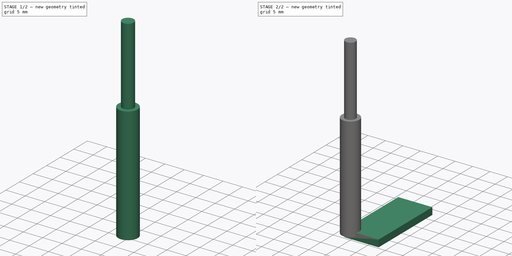
[diagram: build sequence overview — one tinted view per stage of 2, left to right]
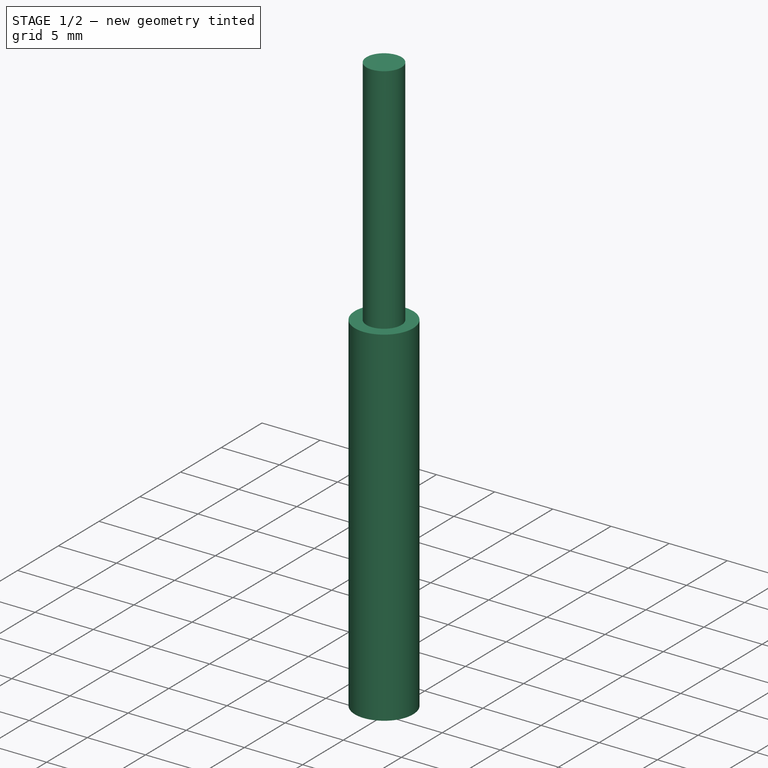
[diagram: stage 1 of 2 — iso view after this stage's code; geometry added in this stage tinted green]
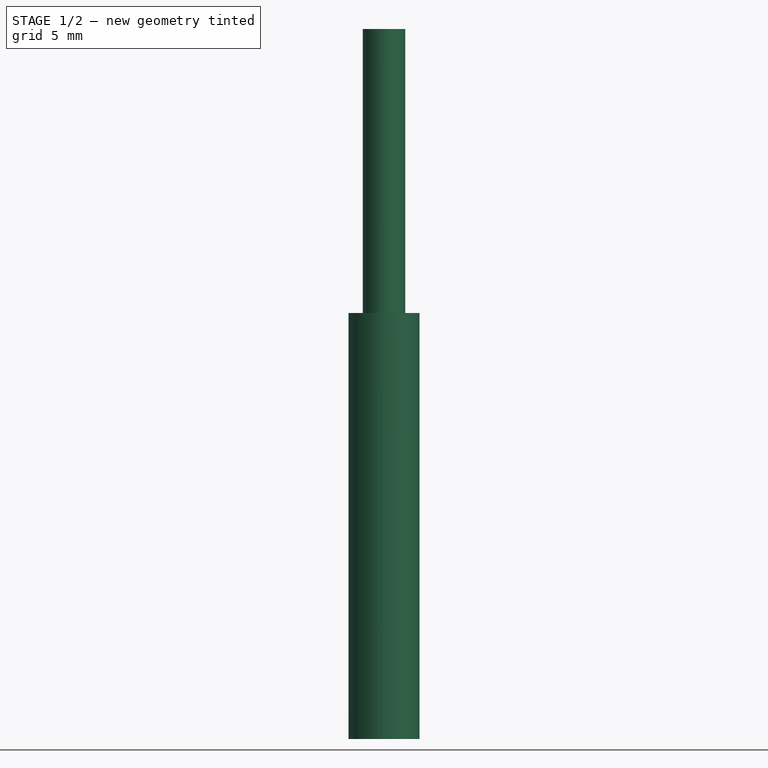
[diagram: stage 1 of 2 — front view after this stage's code; geometry added in this stage tinted green]
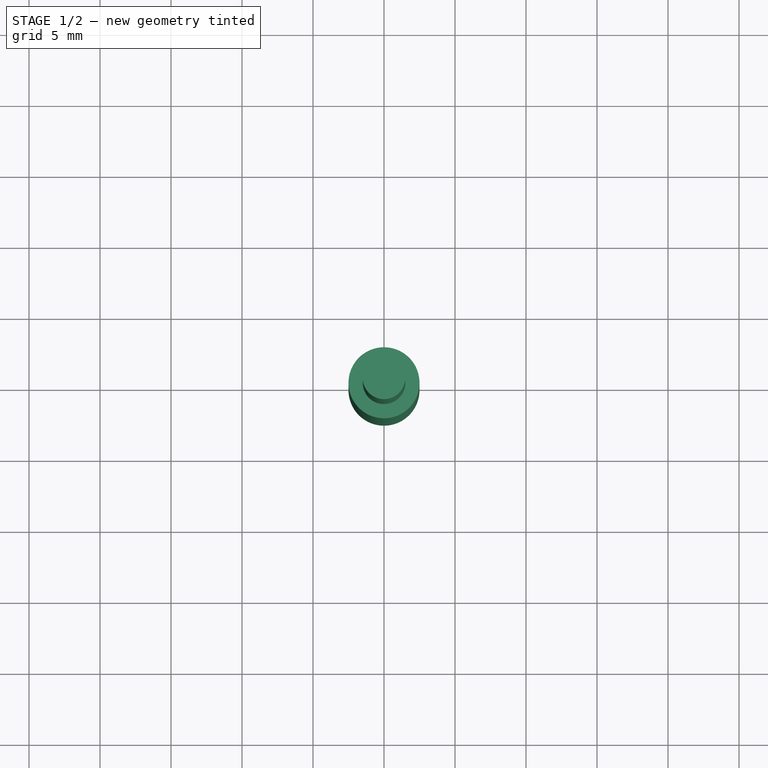
[diagram: stage 1 of 2 — top view after this stage's code; geometry added in this stage tinted green]
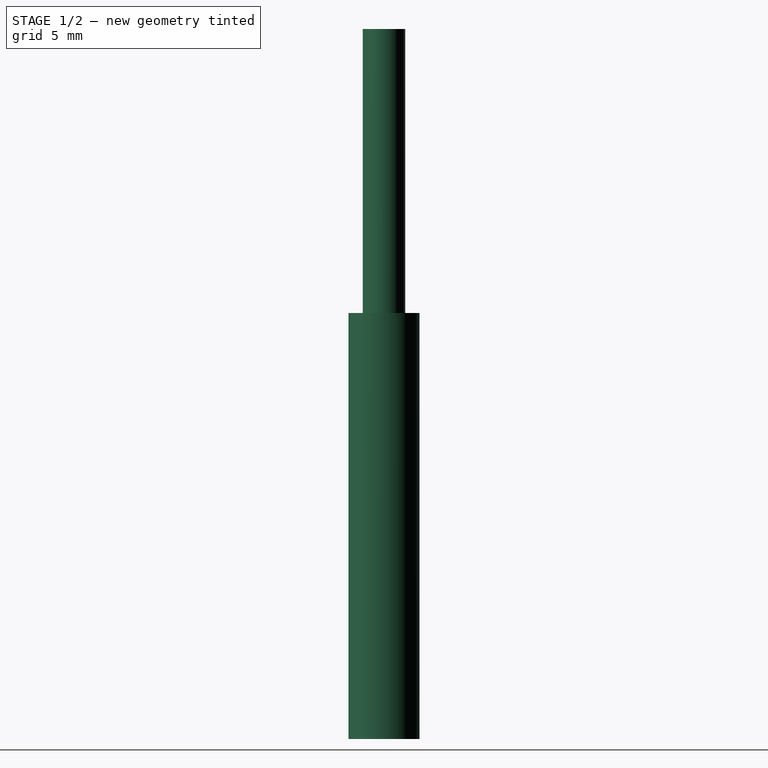
[diagram: stage 1 of 2 — right view after this stage's code; geometry added in this stage tinted green]
FCSTD DOCUMENT  (FreeCAD 0.21R33771 (Git))
Label: TmouldStencil
License: All rights reserved
LicenseURL: http://en.wikipedia.org/wiki/All_rights_reserved
objects: App::DocumentObjectGroup×3, Path::FeaturePython×3, Sketcher::SketchObject×2, Part::FeaturePython×2, App::FeaturePython×1, Part::Part2DObjectPython×1
note: 5 computed .brp shape members not serialized (recipe doc carries the construction recipe); baked Part::Feature solids carry a one-line shape summary decoded from their .brp

FEATURE [Sketcher::SketchObject] Sketch  label="20x50"
  FullyConstrained = true
  MapMode = 5
  Support = -> [XY_Plane]
  sketch-geometry (4):
    g0: LineSegment StartX=0 StartY=0 StartZ=0 EndX=50 EndY=0 EndZ=0
    g1: LineSegment StartX=50 StartY=0 StartZ=0 EndX=50 EndY=20 EndZ=0
    g2: LineSegment StartX=50 StartY=20 StartZ=0 EndX=0 EndY=20 EndZ=0
    g3: LineSegment StartX=0 StartY=20 StartZ=0 EndX=0 EndY=0 EndZ=0
  constraints (11):
    c: Coincident(g0,g1)
    c: Coincident(g1,g2)
    c: Coincident(g2,g3)
    c: Coincident(g3,g0)
    c: Horizontal(g0)
    c: Horizontal(g2)
    c: Vertical(g1)
    c: Vertical(g3)
    c: Coincident(g0,g-1)
    c: DistanceX(g2,g2) = 50
    c: DistanceY(g1,g1) = 20
FEATURE [Sketcher::SketchObject] Sketch001  label="LASER-X-Extent390"
  FullyConstrained = false
  MapMode = 2
  Support = -> [Sketch]
  sketch-geometry (60):
    g0: LineSegment StartX=0 StartY=0 StartZ=0 EndX=2.78457 EndY=0 EndZ=0
    g1: LineSegment StartX=2.78457 StartY=0 StartZ=0 EndX=2.78457 EndY=1 EndZ=0
    g2: LineSegment StartX=2.78457 StartY=1 StartZ=0 EndX=2.78457 EndY=2 EndZ=0
    g3: LineSegment StartX=2.78457 StartY=2 StartZ=0 EndX=2.78457 EndY=3 EndZ=0
    g4: LineSegment StartX=2.78457 StartY=3 StartZ=0 EndX=2.78457 EndY=4 EndZ=0
    g5: LineSegment StartX=2.78457 StartY=4 StartZ=0 EndX=2.78457 EndY=5 EndZ=0
    g6: LineSegment StartX=2.78457 StartY=5 StartZ=0 EndX=2.78457 EndY=6 EndZ=0
    g7: LineSegment StartX=2.78457 StartY=6 StartZ=0 EndX=2.78457 EndY=7 EndZ=0
    g8: LineSegment StartX=2.78457 StartY=7 StartZ=0 EndX=2.78457 EndY=8 EndZ=0
    g9: LineSegment StartX=2.78457 StartY=8 StartZ=0 EndX=2.78457 EndY=9 EndZ=0
    g10: LineSegment StartX=2.78457 StartY=9 StartZ=0 EndX=2.78457 EndY=10 EndZ=0
    g11: LineSegment StartX=2.78457 StartY=10 StartZ=0 EndX=2.78457 EndY=11 EndZ=0
    g12: LineSegment StartX=2.78457 StartY=11 StartZ=0 EndX=2.78457 EndY=12 EndZ=0
    g13: LineSegment StartX=2.78457 StartY=12 StartZ=0 EndX=2.78457 EndY=13 EndZ=0
    g14: LineSegment StartX=2.78457 StartY=13 StartZ=0 EndX=2.78457 EndY=14 EndZ=0
    g15: LineSegment StartX=2.78457 StartY=14 StartZ=0 EndX=2.78457 EndY=15 EndZ=0
    g16: LineSegment StartX=2.78457 StartY=15 StartZ=0 EndX=2.78457 EndY=16 EndZ=0
    g17: LineSegment StartX=2.78457 StartY=16 StartZ=0 EndX=2.78457 EndY=17 EndZ=0
    g18: LineSegment StartX=2.78457 StartY=17 StartZ=0 EndX=2.78457 EndY=18 EndZ=0
    g19: LineSegment StartX=2.78457 StartY=18 StartZ=0 EndX=2.78457 EndY=19 EndZ=0
    g20: LineSegment StartX=2.78457 StartY=19 StartZ=0 EndX=2.78457 EndY=20 EndZ=0
    g21: LineSegment StartX=2.78457 StartY=2 StartZ=0 EndX=0 EndY=2 EndZ=0
    g22: LineSegment StartX=2.78457 StartY=4 StartZ=0 EndX=0 EndY=4 EndZ=0
    g23: LineSegment StartX=2.78457 StartY=2 StartZ=0 EndX=2.78457 EndY=4 EndZ=0
    g24: LineSegment StartX=2.78457 StartY=6 StartZ=0 EndX=0 EndY=6 EndZ=0
    g25: LineSegment StartX=2.78457 StartY=4 StartZ=0 EndX=2.78457 EndY=6 EndZ=0
    g26: LineSegment StartX=2.78457 StartY=8 StartZ=0 EndX=0 EndY=8 EndZ=0
    g27: LineSegment StartX=2.78457 StartY=6 StartZ=0 EndX=2.78457 EndY=8 EndZ=0
    g28: LineSegment StartX=2.78457 StartY=10 StartZ=0 EndX=0 EndY=10 EndZ=0
    g29: LineSegment StartX=2.78457 StartY=8 StartZ=0 EndX=2.78457 EndY=10 EndZ=0
    g30: LineSegment StartX=2.78457 StartY=12 StartZ=0 EndX=0 EndY=12 EndZ=0
    g31: LineSegment StartX=2.78457 StartY=10 StartZ=0 EndX=2.78457 EndY=12 EndZ=0
    g32: LineSegment StartX=2.78457 StartY=14 StartZ=0 EndX=0 EndY=14 EndZ=0
    g33: LineSegment StartX=2.78457 StartY=12 StartZ=0 EndX=2.78457 EndY=14 EndZ=0
    g34: LineSegment StartX=2.78457 StartY=16 StartZ=0 EndX=0 EndY=16 EndZ=0
    g35: LineSegment StartX=2.78457 StartY=14 StartZ=0 EndX=2.78457 EndY=16 EndZ=0
    g36: LineSegment StartX=2.78457 StartY=18 StartZ=0 EndX=0 EndY=18 EndZ=0
    g37: LineSegment StartX=2.78457 StartY=16 StartZ=0 EndX=2.78457 EndY=18 EndZ=0
    g38: LineSegment StartX=2.78457 StartY=20 StartZ=0 EndX=0 EndY=20 EndZ=0
    g39: LineSegment StartX=2.78457 StartY=18 StartZ=0 EndX=2.78457 EndY=20 EndZ=0
    g40: LineSegment StartX=2.78457 StartY=1 StartZ=0 EndX=7.78457 EndY=1 EndZ=0
    g41: LineSegment StartX=2.78457 StartY=3 StartZ=0 EndX=7.78457 EndY=3 EndZ=0
    g42: LineSegment StartX=2.78457 StartY=1 StartZ=0 EndX=2.78457 EndY=3 EndZ=0
    g43: LineSegment StartX=2.78457 StartY=5 StartZ=0 EndX=7.78457 EndY=5 EndZ=0
    g44: LineSegment StartX=2.78457 StartY=3 StartZ=0 EndX=2.78457 EndY=5 EndZ=0
    g45: LineSegment StartX=2.78457 StartY=7 StartZ=0 EndX=7.78457 EndY=7 EndZ=0
    g46: LineSegment StartX=2.78457 StartY=5 StartZ=0 EndX=2.78457 EndY=7 EndZ=0
    g47: LineSegment StartX=2.78457 StartY=9 StartZ=0 EndX=7.78457 EndY=9 EndZ=0
    g48: LineSegment StartX=2.78457 StartY=7 StartZ=0 EndX=2.78457 EndY=9 EndZ=0
    g49: LineSegment StartX=2.78457 StartY=11 StartZ=0 EndX=7.78457 EndY=11 EndZ=0
    g50: LineSegment StartX=2.78457 StartY=9 StartZ=0 EndX=2.78457 EndY=11 EndZ=0
    g51: LineSegment StartX=2.78457 StartY=13 StartZ=0 EndX=7.78457 EndY=13 EndZ=0
    g52: LineSegment StartX=2.78457 StartY=11 StartZ=0 EndX=2.78457 EndY=13 EndZ=0
    g53: LineSegment StartX=2.78457 StartY=15 StartZ=0 EndX=7.78457 EndY=15 EndZ=0
    g54: LineSegment StartX=2.78457 StartY=13 StartZ=0 EndX=2.78457 EndY=15 EndZ=0
    g55: LineSegment StartX=2.78457 StartY=17 StartZ=0 EndX=7.78457 EndY=17 EndZ=0
    g56: LineSegment StartX=2.78457 StartY=15 StartZ=0 EndX=2.78457 EndY=17 EndZ=0
    g57: LineSegment StartX=2.78457 StartY=19 StartZ=0 EndX=7.78457 EndY=19 EndZ=0
    g58: LineSegment StartX=2.78457 StartY=17 StartZ=0 EndX=2.78457 EndY=19 EndZ=0
    g59: LineSegment StartX=2.78457 StartY=10 StartZ=0 EndX=5.64115 EndY=10 EndZ=0
  constraints (168):
    c: Coincident(g-1,g0)
    c: PointOnObject(g0,g-1)
    c: Coincident(g0,g1)
    c: Vertical(g1)
    c: Coincident(g1,g2)
    c: Vertical(g2)
    c: Coincident(g2,g3)
    c: Coincident(g3,g4)
    c: Coincident(g4,g5)
    c: Coincident(g5,g6)
    c: Vertical(g6)
    c: Coincident(g6,g7)
    c: Vertical(g7)
    c: Coincident(g7,g8)
    c: Vertical(g8)
    c: Coincident(g8,g9)
    c: Vertical(g9)
    c: Coincident(g9,g10)
    c: Vertical(g10)
    c: Coincident(g10,g11)
    c: Vertical(g11)
    c: Coincident(g11,g12)
    c: Coincident(g12,g13)
    c: Coincident(g13,g14)
    c: Equal(g1,g2)
    c: Equal(g3,g2)
    c: Equal(g3,g4)
    c: Equal(g4,g5)
    c: Vertical(g5)
    c: Equal(g5,g6)
    c: Equal(g6,g7)
    c: Equal(g7,g8)
    c: Equal(g8,g9)
    c: Equal(g9,g10)
    c: Equal(g10,g11)
    c: Equal(g11,g12)
    c: Equal(g12,g13)
    c: Equal(g13,g14)
    c: Vertical(g13)
    c: Vertical(g14)
    c: Vertical(g12)
    c: DistanceY(g1,g1) = 1
    c: Coincident(g14,g15)
    c: Vertical(g15)
    c: Coincident(g15,g16)
    c: Coincident(g16,g17)
    c: Coincident(g17,g18)
    c: Vertical(g18)
    c: Vertical(g17)
    c: Vertical(g16)
    c: Equal(g16,g17)
    c: Equal(g14,g15)
    c: Equal(g16,g15)
    c: Equal(g17,g18)
    c: Coincident(g18,g19)
    c: Coincident(g19,g20)
    c: Vertical(g20)
    c: Vertical(g19)
    c: Equal(g18,g19)
    c: Equal(g20,g19)
    c: Coincident(g21,g2)
    c: PointOnObject(g21,g-2)
    c: Horizontal(g21)
    c: Horizontal(g22)
    c: Coincident(g21,g23)
    c: Coincident(g22,g23)
    c: Angle(g23) = 1.5708
    c: Horizontal(g24)
    c: Coincident(g22,g25)
    c: Coincident(g24,g25)
    c: Equal(g23,g25)
    c: Parallel(g25,g23)
    c: Horizontal(g26)
    c: Coincident(g24,g27)
    c: Coincident(g26,g27)
    c: Equal(g23,g27)
    c: Parallel(g27,g23)
    c: Horizontal(g28)
    c: Coincident(g26,g29)
    c: Coincident(g28,g29)
    c: Equal(g23,g29)
    c: Parallel(g29,g23)
    c: Horizontal(g30)
    c: Coincident(g28,g31)
    c: Coincident(g30,g31)
    c: Equal(g23,g31)
    c: Parallel(g31,g23)
    c: Horizontal(g32)
    c: Coincident(g30,g33)
    c: Coincident(g32,g33)
    c: Equal(g23,g33)
    c: Parallel(g33,g23)
    c: Horizontal(g34)
    c: Coincident(g32,g35)
    c: Coincident(g34,g35)
    c: Equal(g23,g35)
    c: Parallel(g35,g23)
    c: Horizontal(g36)
    c: Coincident(g34,g37)
    c: Coincident(g36,g37)
    c: Equal(g23,g37)
    c: Parallel(g37,g23)
    c: Horizontal(g38)
    c: Coincident(g36,g39)
    c: Coincident(g38,g39)
    c: Equal(g23,g39)
    c: Parallel(g39,g23)
    c: Coincident(g22,g4)
    c: Coincident(g40,g1)
    c: Horizontal(g40)
    c: DistanceX(g40,g40) = 5
    c: Horizontal(g41)
    c: Equal(g40,g41) = 5
    c: Coincident(g40,g42)
    c: Coincident(g41,g42)
    c: Angle(g42) = 1.5708
    c: Horizontal(g43)
    c: Equal(g40,g43) = 5
    c: Coincident(g41,g44)
    c: Coincident(g43,g44)
    c: Equal(g42,g44)
    c: Parallel(g44,g42)
    c: Horizontal(g45)
    c: Equal(g40,g45) = 5
    c: Coincident(g43,g46)
    c: Coincident(g45,g46)
    c: Equal(g42,g46)
    c: Parallel(g46,g42)
    c: Horizontal(g47)
    c: Equal(g40,g47) = 5
    c: Coincident(g45,g48)
    c: Coincident(g47,g48)
    c: Equal(g42,g48)
    c: Parallel(g48,g42)
    c: Horizontal(g49)
    c: Equal(g40,g49) = 5
    c: Coincident(g47,g50)
    c: Coincident(g49,g50)
    c: Equal(g42,g50)
    c: Parallel(g50,g42)
    c: Horizontal(g51)
    c: Equal(g40,g51) = 5
    c: Coincident(g49,g52)
    c: Coincident(g51,g52)
    c: Equal(g42,g52)
    c: Parallel(g52,g42)
    c: Horizontal(g53)
    c: Equal(g40,g53) = 5
    c: Coincident(g51,g54)
    c: Coincident(g53,g54)
    c: Equal(g42,g54)
    c: Parallel(g54,g42)
    c: Horizontal(g55)
    c: Equal(g40,g55) = 5
    c: Coincident(g53,g56)
    c: Coincident(g55,g56)
    c: Equal(g42,g56)
    c: Parallel(g56,g42)
    c: Horizontal(g57)
    c: Equal(g40,g57) = 5
    c: Coincident(g55,g58)
    c: Coincident(g57,g58)
    c: Equal(g42,g58)
    c: Parallel(g58,g42)
    c: Coincident(g41,g3)
    c: Coincident(g59,g10)
    c: Horizontal(g59)
    c: DistanceY(g0,g28) = 10
FEATURE [App::FeaturePython] SetupSheet  # Path/CAM operation (typed FeaturePython)
  ClearanceHeightExpression = OpStockZMax+SetupSheet.ClearanceHeightOffset
  ClearanceHeightOffset = 5
  CoolantMode = 0
  CoolantModes = None | Flood | Mist
  FinalDepthExpression = OpFinalDepth
  HorizRapid = 0
  SafeHeightExpression = OpStockZMax+SetupSheet.SafeHeightOffset
  SafeHeightOffset = 3
  StartDepthExpression = OpStartDepth
  StepDownExpression = OpToolDiameter
  VertRapid = 0
FEATURE [Part::Part2DObjectPython] Clone2D  label="Model-LASER-X-Extent390"  # Draft 2D object (typed FeaturePython)
  Fuse = false
  Objects = -> [Sketch001]
  PathResource = Model
  Scale = (1,1,1)
FEATURE [App::DocumentObjectGroup] Model
  Group = -> [Clone2D]
FEATURE [Part::FeaturePython] ToolBit  label="Endmill"  # Path/CAM toolbit (typed FeaturePython)
  BitPropertyNames = Chipload | CuttingEdgeHeight | Diameter | Flutes | Length | Material | ShankDiameter | SpindleDirection
  BitShape = <path>
  Chipload = 0
  CuttingEdgeHeight = 30
  Diameter = 5
  Flutes = 0
  Length = 50
  Material = 0
  ShankDiameter = 3
  ShapeName = endmill
  SpindleDirection = 0
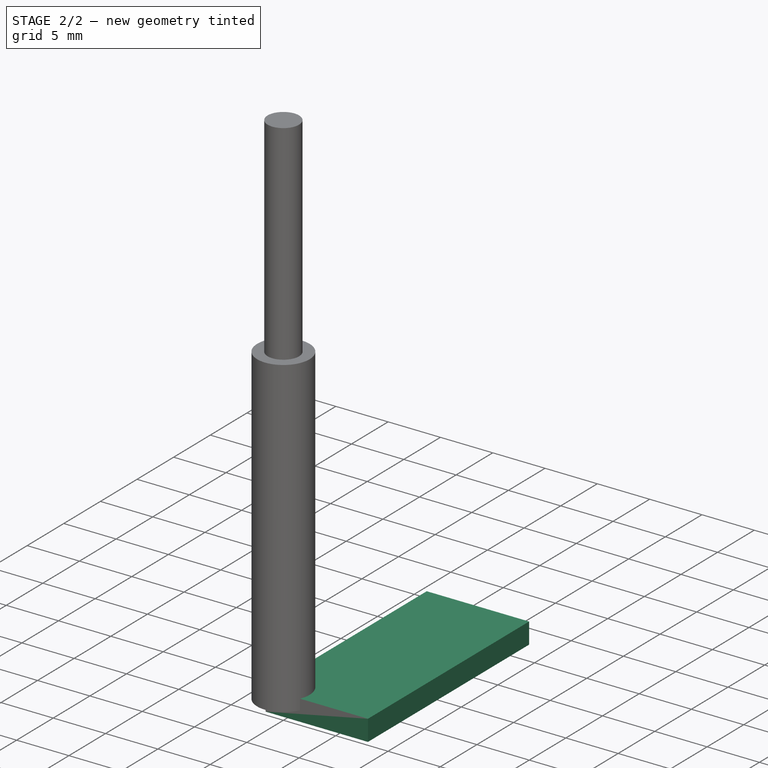
[diagram: stage 2 of 2 — iso view after this stage's code; geometry added in this stage tinted green]
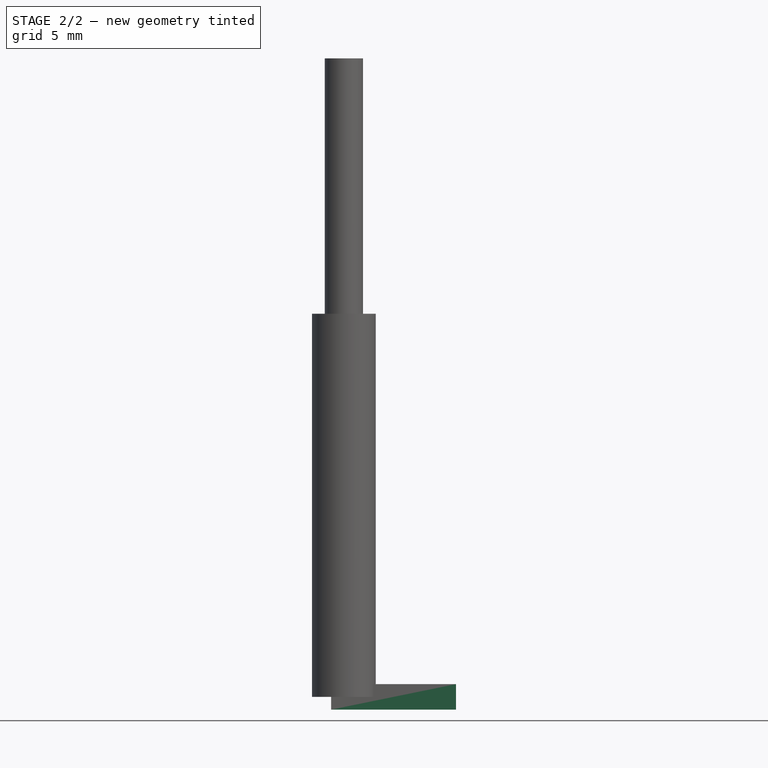
[diagram: stage 2 of 2 — front view after this stage's code; geometry added in this stage tinted green]
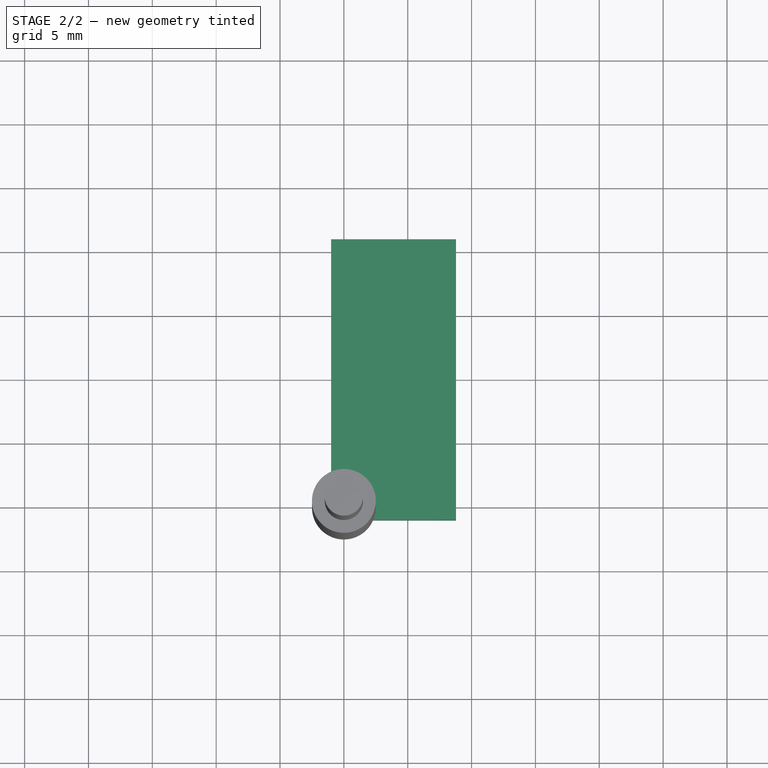
[diagram: stage 2 of 2 — top view after this stage's code; geometry added in this stage tinted green]
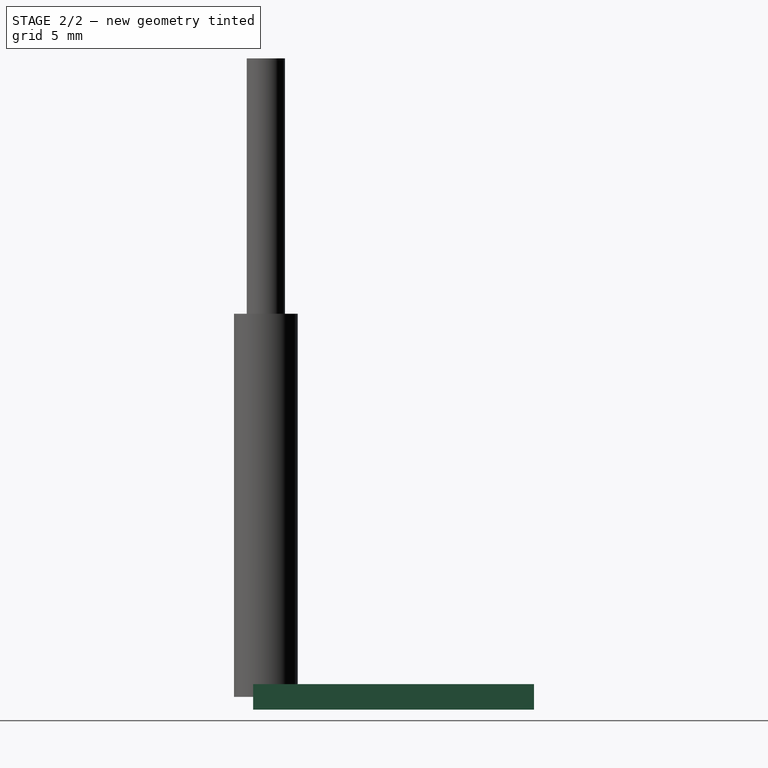
[diagram: stage 2 of 2 — right view after this stage's code; geometry added in this stage tinted green]
FEATURE [Path::FeaturePython] TC__Default_Tool  label="TC: Default Tool"  # Path/CAM operation (typed FeaturePython)
  HorizFeed = 0
  HorizRapid = 0
  SpindleDir = 0
  SpindleSpeed = 0
  Tool = -> ToolBit
  ToolNumber = 1
  VertFeed = 0
  VertRapid = 0
  expr: HorizRapid = SetupSheet.HorizRapid
  expr: VertRapid = SetupSheet.VertRapid
FEATURE [App::DocumentObjectGroup] Tools
  Group = -> [TC__Default_Tool]
FEATURE [Part::FeaturePython] Stock  # WARN: FeaturePython — macro-defined, semantics opaque (R4)
  Base = -> Model
  ExtXneg = 1
  ExtXpos = 1
  ExtYneg = 1
  ExtYpos = 1
  ExtZneg = 1
  ExtZpos = 1
  StockType = FromBase
FEATURE [Path::FeaturePython] Engrave  # Path/CAM operation (typed FeaturePython)
  Active = true
  ClearanceHeight = 6
  CoolantMode = 0
  CycleTime = Cycletime Error
  FinalDepth = -5
  OpFinalDepth = -5
  OpStartDepth = 0
  OpStockZMax = 1
  OpStockZMin = -1
  OpToolDiameter = 5
  SafeHeight = 4
  StartDepth = 0
  StartVertex = 0
  StepDown = 5
  ToolController = -> TC__Default_Tool
  expr: ClearanceHeight = OpStockZMax + SetupSheet.ClearanceHeightOffset
  expr: FinalDepth = OpFinalDepth
  expr: SafeHeight = OpStockZMax + SetupSheet.SafeHeightOffset
  expr: StartDepth = OpStartDepth
  expr: StepDown = OpToolDiameter
FEATURE [App::DocumentObjectGroup] Operations
  Group = -> [Engrave]
FEATURE [Path::FeaturePython] Job  # Path/CAM operation (typed FeaturePython)
  CycleTime = 00:00:00
  Fixtures = G54
  GeometryTolerance = 0.01
  JobType = 0
  Model = -> Model
  Operations = -> Operations
  OrderOutputBy = 0
  PostProcessor = 1
  SetupSheet = -> SetupSheet
  SplitOutput = false
  Stock = -> Stock
  Tools = -> Tools
note: 1 file-system path scrubbed to <path> (originals preserved in the JSON sidecar)
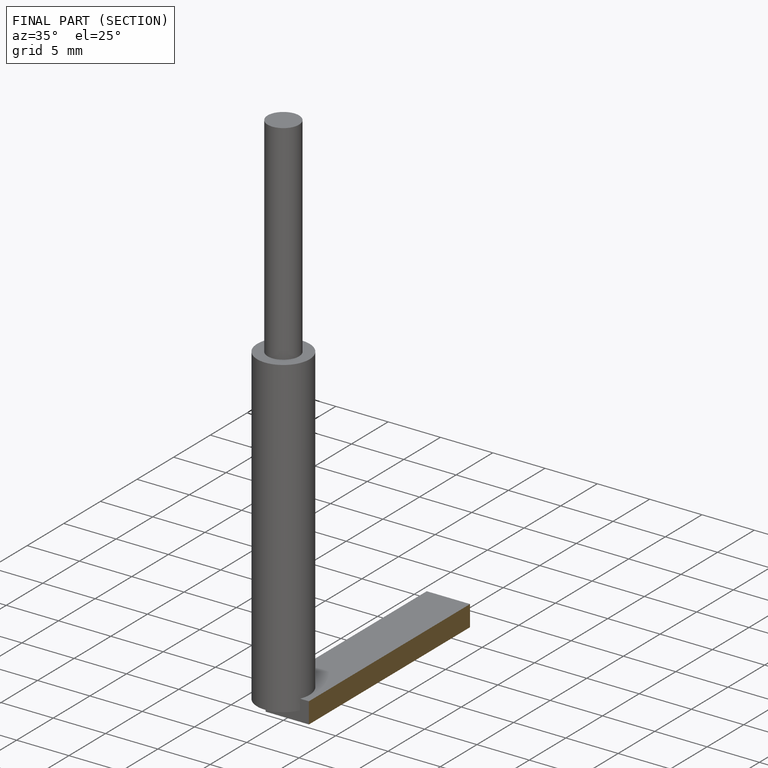
[diagram: finished part — half-section view (interior)]
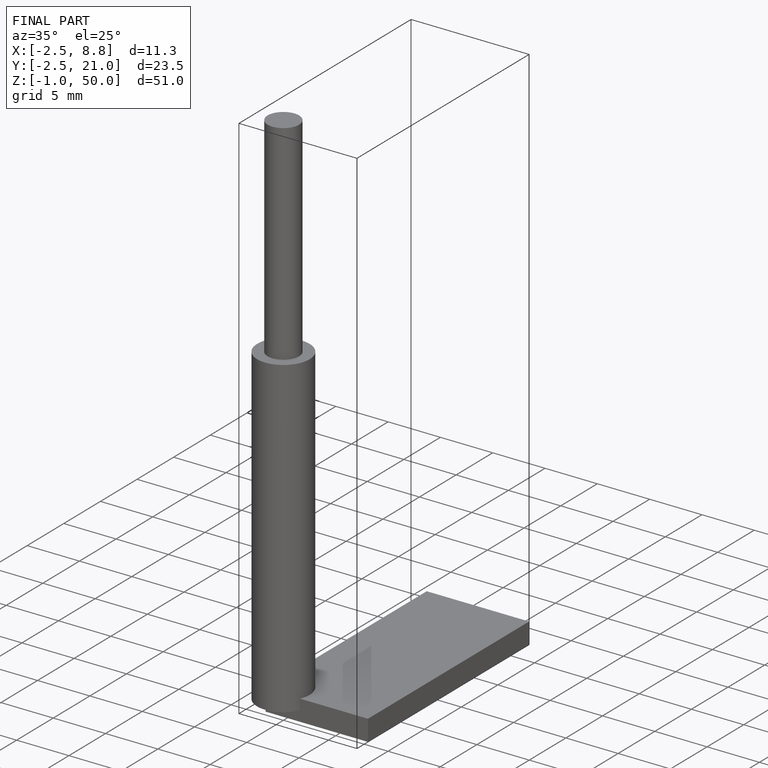
[diagram: finished part — iso view with bounding-box wireframe]
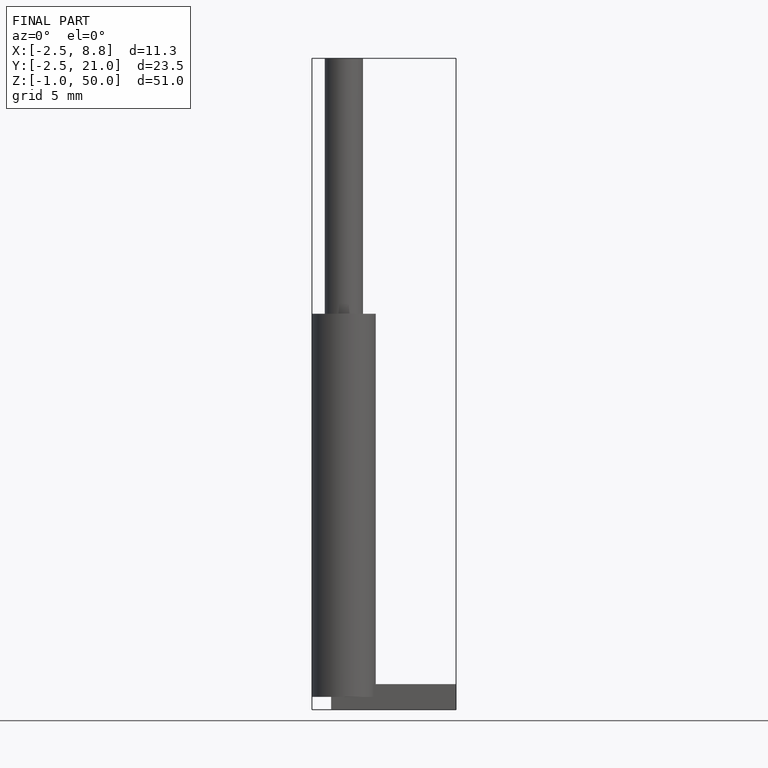
[diagram: finished part — front view with bounding-box wireframe]
